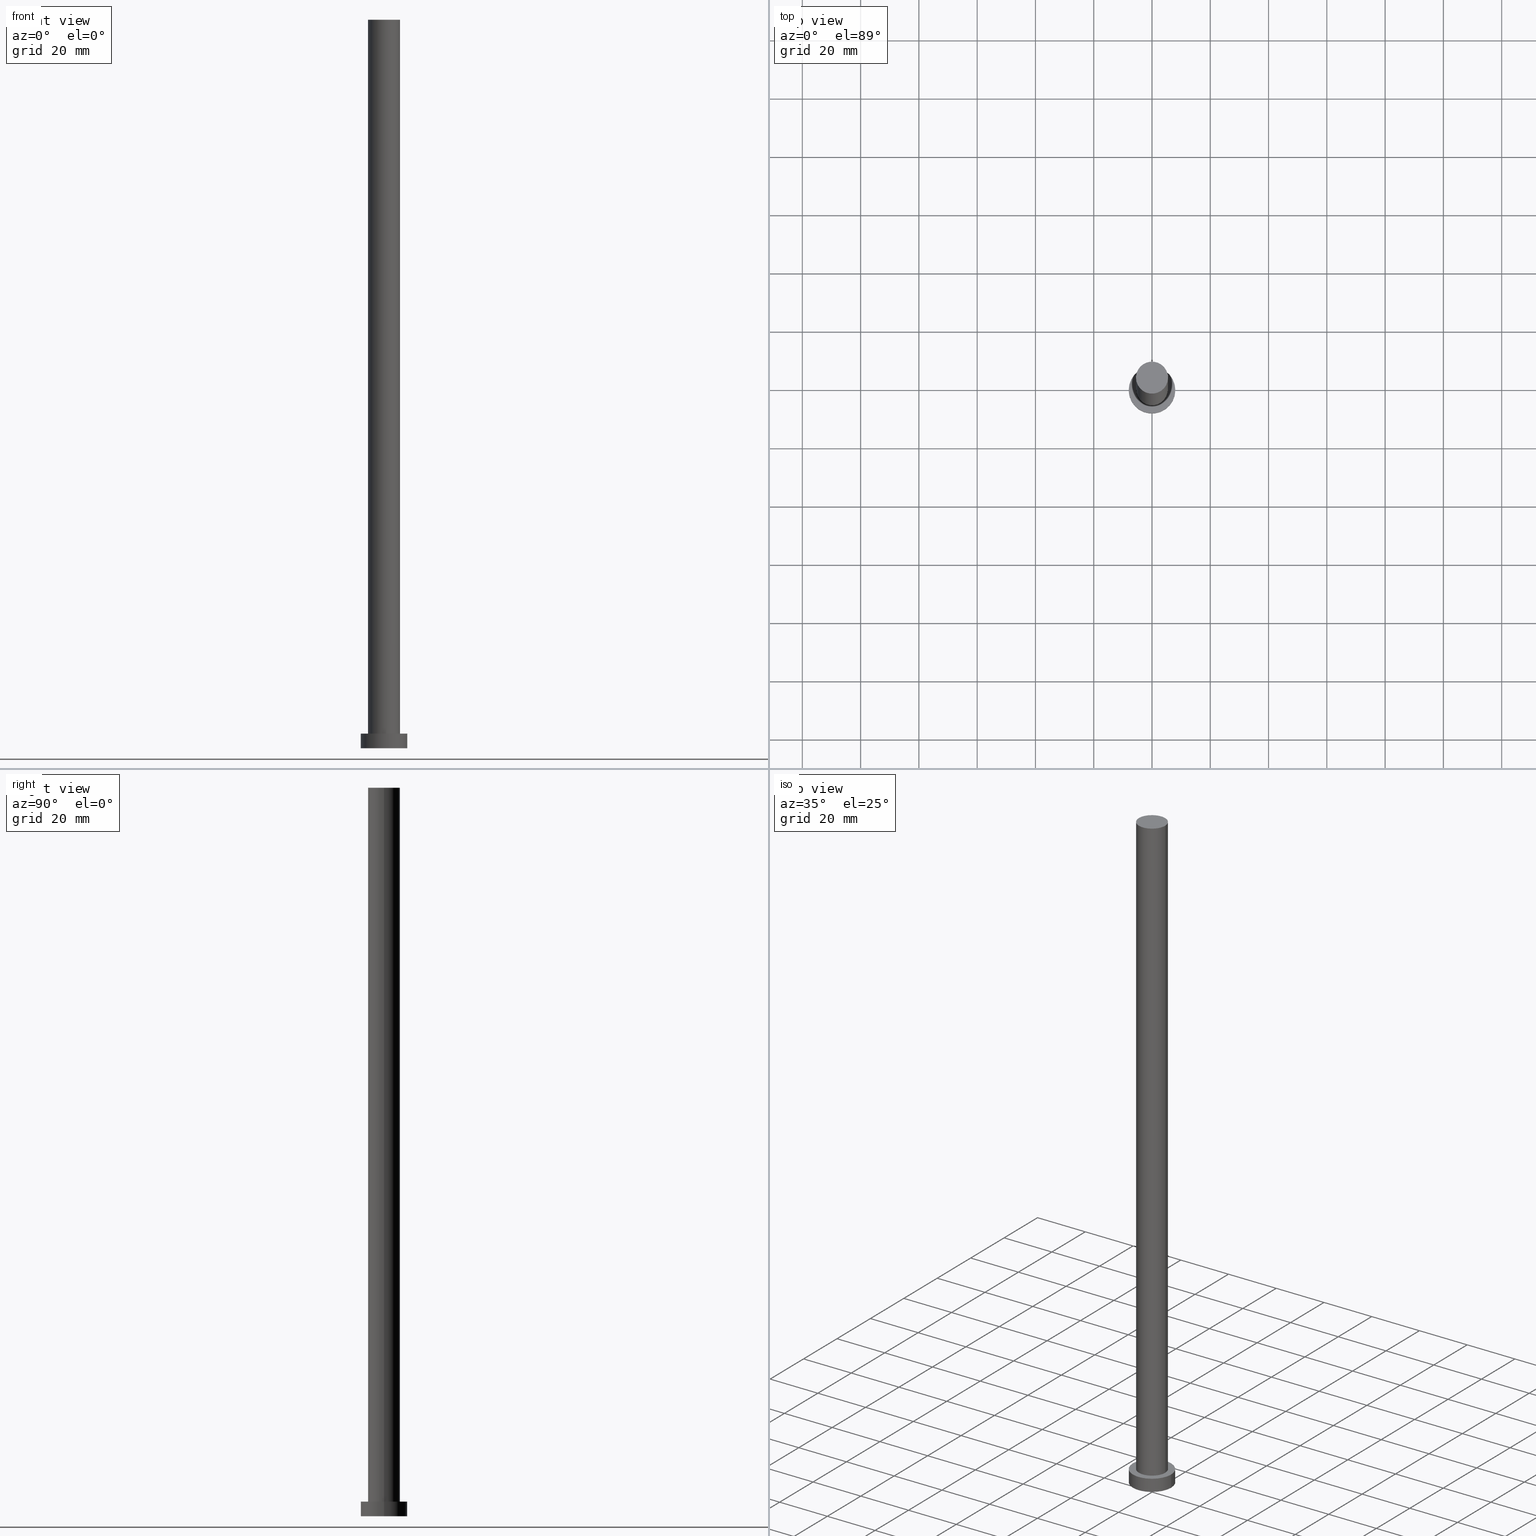
[diagram: canonical four-view strip — front | top / right | iso, engineering-drawing reading convention]
A machine part, canonical four-view strip (front | top / right | iso — engineering-drawing reading convention). The complete STEP part file that produces these views, byte-faithful:
ISO-10303-21;
HEADER;
FILE_DESCRIPTION (( 'STEP AP203' ),
    '1' );
FILE_NAME ('cf1f.STEP',
    '2023-02-13T12:29:04',
    ( '' ),
    ( '' ),
    'SwSTEP 2.0',
    'SolidWorks 2019',
    '' );
FILE_SCHEMA (( 'CONFIG_CONTROL_DESIGN' ));
ENDSEC;

DATA;
#1 = CC_DESIGN_SECURITY_CLASSIFICATION ( #71, ( #59 ) ) ;
#2 = AXIS2_PLACEMENT_3D ( 'NONE', #190, #151, #82 ) ;
#3 = ORIENTED_EDGE ( 'NONE', *, *, #97, .T. ) ;
#4 = CC_DESIGN_DATE_AND_TIME_ASSIGNMENT ( #74, #120, ( #160 ) ) ;
#5 = ORIENTED_EDGE ( 'NONE', *, *, #213, .T. ) ;
#6 = EDGE_LOOP ( 'NONE', ( #103, #169, #3, #191 ) ) ;
#7 = AXIS2_PLACEMENT_3D ( 'NONE', #69, #179, #136 ) ;
#8 = DIRECTION ( 'NONE',  ( 1.000000000000000000, 0.000000000000000000, -0.000000000000000000 ) ) ;
#9 = AXIS2_PLACEMENT_3D ( 'NONE', #80, #202, #172 ) ;
#10 = CARTESIAN_POINT ( 'NONE',  ( -8.000000000000000000, 0.000000000000000000, 0.000000000000000000 ) ) ;
#11 = ADVANCED_FACE ( 'NONE', ( #228 ), #148, .T. ) ;
#12 = LINE ( 'NONE', #222, #20 ) ;
#13 = CARTESIAN_POINT ( 'NONE',  ( 0.000000000000000000, 0.000000000000000000, 250.0000000000000000 ) ) ;
#14 = FACE_OUTER_BOUND ( 'NONE', #27, .T. ) ;
#15 = PERSON_AND_ORGANIZATION_ROLE ( 'classification_officer' ) ;
#16 = CARTESIAN_POINT ( 'NONE',  ( -5.500000000000000000, 0.000000000000000000, 250.0000000000000000 ) ) ;
#17 = AXIS2_PLACEMENT_3D ( 'NONE', #217, #35, #65 ) ;
#18 = DIRECTION ( 'NONE',  ( 0.000000000000000000, 0.000000000000000000, 1.000000000000000000 ) ) ;
#19 = APPROVAL_ROLE ( '' ) ;
#20 = VECTOR ( 'NONE', #81, 1000.000000000000000 ) ;
#21 = CYLINDRICAL_SURFACE ( 'NONE', #122, 8.000000000000000000 ) ;
#22 = APPROVAL_STATUS ( 'not_yet_approved' ) ;
#23 = EDGE_CURVE ( 'NONE', #167, #24, #124, .T. ) ;
#24 = VERTEX_POINT ( 'NONE', #10 ) ;
#25 = FACE_BOUND ( 'NONE', #147, .T. ) ;
#26 = PERSON_AND_ORGANIZATION ( #78, #38 ) ;
#27 = EDGE_LOOP ( 'NONE', ( #86, #145 ) ) ;
#28 = CARTESIAN_POINT ( 'NONE',  ( 8.000000000000000000, 9.797174393178825657E-16, 0.000000000000000000 ) ) ;
#29 = VERTEX_POINT ( 'NONE', #126 ) ;
#30 = APPROVAL ( #22, 'NEUR�EN�' ) ;
#31 = CARTESIAN_POINT ( 'NONE',  ( 0.000000000000000000, 0.000000000000000000, 250.0000000000000000 ) ) ;
#32 = APPROVAL_STATUS ( 'not_yet_approved' ) ;
#33 = PERSON_AND_ORGANIZATION_ROLE ( 'creator' ) ;
#34 = CARTESIAN_POINT ( 'NONE',  ( 8.000000000000000000, 9.797174393178825657E-16, 5.000000000000000000 ) ) ;
#35 = DIRECTION ( 'NONE',  ( 0.000000000000000000, 0.000000000000000000, 1.000000000000000000 ) ) ;
#36 = DATE_AND_TIME ( #252, #189 ) ;
#37 = EDGE_CURVE ( 'NONE', #209, #152, #121, .T. ) ;
#38 = ORGANIZATION ( 'NEUR�EN�', 'NEUR�EN�', '' ) ;
#39 = ORIENTED_EDGE ( 'NONE', *, *, #108, .T. ) ;
#40 = PRODUCT_DEFINITION_SHAPE ( 'NONE', 'NONE',  #160 ) ;
#41 = ORIENTED_EDGE ( 'NONE', *, *, #90, .F. ) ;
#42 = APPROVAL_PERSON_ORGANIZATION ( #110, #56, #215 ) ;
#43 = AXIS2_PLACEMENT_3D ( 'NONE', #242, #105, #243 ) ;
#44 = LINE ( 'NONE', #208, #128 ) ;
#45 = UNCERTAINTY_MEASURE_WITH_UNIT (LENGTH_MEASURE( 1.000000000000000082E-05 ), #239, 'distance_accuracy_value', 'NONE');
#46 = VERTEX_POINT ( 'NONE', #28 ) ;
#47 = DIRECTION ( 'NONE',  ( -0.000000000000000000, -0.000000000000000000, -1.000000000000000000 ) ) ;
#48 = PERSON_AND_ORGANIZATION ( #78, #38 ) ;
#49 = CARTESIAN_POINT ( 'NONE',  ( -8.000000000000000000, 0.000000000000000000, 5.000000000000000000 ) ) ;
#50 = CALENDAR_DATE ( 2023, 13, 2 ) ;
#51 = EDGE_CURVE ( 'NONE', #24, #46, #238, .T. ) ;
#52 = CARTESIAN_POINT ( 'NONE',  ( 5.500000000000000000, 6.735557395310442023E-16, 250.0000000000000000 ) ) ;
#53 = COORDINATED_UNIVERSAL_TIME_OFFSET ( 1, 0, .AHEAD. ) ;
#54 = PLANE ( 'NONE',  #17 ) ;
#55 = COORDINATED_UNIVERSAL_TIME_OFFSET ( 1, 0, .AHEAD. ) ;
#56 = APPROVAL ( #212, 'NEUR�EN�' ) ;
#57 = APPROVAL_PERSON_ORGANIZATION ( #137, #248, #159 ) ;
#58 = EDGE_CURVE ( 'NONE', #185, #46, #44, .T. ) ;
#59 = PRODUCT_DEFINITION_FORMATION_WITH_SPECIFIED_SOURCE ( 'LIBOVOLN�', '', #200, .NOT_KNOWN. ) ;
#60 = CC_DESIGN_APPROVAL ( #30, ( #71 ) ) ;
#61 = PRODUCT_RELATED_PRODUCT_CATEGORY ( 'detail', '', ( #200 ) ) ;
#62 = AXIS2_PLACEMENT_3D ( 'NONE', #247, #73, #70 ) ;
#63 = PLANE ( 'NONE',  #196 ) ;
#64 = CARTESIAN_POINT ( 'NONE',  ( 0.000000000000000000, 0.000000000000000000, 5.000000000000000000 ) ) ;
#65 = DIRECTION ( 'NONE',  ( 1.000000000000000000, 0.000000000000000000, -0.000000000000000000 ) ) ;
#66 = APPROVAL_DATE_TIME ( #118, #248 ) ;
#67 = AXIS2_PLACEMENT_3D ( 'NONE', #138, #195, #211 ) ;
#68 = PERSON_AND_ORGANIZATION ( #78, #38 ) ;
#69 = CARTESIAN_POINT ( 'NONE',  ( 0.000000000000000000, 0.000000000000000000, 0.000000000000000000 ) ) ;
#70 = DIRECTION ( 'NONE',  ( 1.000000000000000000, 0.000000000000000000, 0.000000000000000000 ) ) ;
#71 = SECURITY_CLASSIFICATION ( '', '', #233 ) ;
#72 = EDGE_CURVE ( 'NONE', #152, #99, #12, .T. ) ;
#73 = DIRECTION ( 'NONE',  ( 0.000000000000000000, 0.000000000000000000, 1.000000000000000000 ) ) ;
#74 = DATE_AND_TIME ( #96, #140 ) ;
#75 = AXIS2_PLACEMENT_3D ( 'NONE', #216, #89, #133 ) ;
#76 = ADVANCED_FACE ( 'NONE', ( #25, #244 ), #63, .T. ) ;
#77 = DIRECTION ( 'NONE',  ( -1.000000000000000000, 0.000000000000000000, 0.000000000000000000 ) ) ;
#78 = PERSON ( 'NEUR�EN�', 'NEUR�EN�', 'NEUR�EN�', ('NEUR�EN�'), ('NEUR�EN�'), ('NEUR�EN�') ) ;
#79 = ORIENTED_EDGE ( 'NONE', *, *, #37, .F. ) ;
#80 = CARTESIAN_POINT ( 'NONE',  ( 0.000000000000000000, 0.000000000000000000, 250.0000000000000000 ) ) ;
#81 = DIRECTION ( 'NONE',  ( -0.000000000000000000, -0.000000000000000000, -1.000000000000000000 ) ) ;
#82 = DIRECTION ( 'NONE',  ( 1.000000000000000000, 0.000000000000000000, 0.000000000000000000 ) ) ;
#83 =( NAMED_UNIT ( * ) PLANE_ANGLE_UNIT ( ) SI_UNIT ( $, .RADIAN. ) );
#84 = DIRECTION ( 'NONE',  ( 0.000000000000000000, 0.000000000000000000, 1.000000000000000000 ) ) ;
#85 = ORIENTED_EDGE ( 'NONE', *, *, #37, .T. ) ;
#86 = ORIENTED_EDGE ( 'NONE', *, *, #51, .F. ) ;
#87 = CARTESIAN_POINT ( 'NONE',  ( -5.500000000000000000, 0.000000000000000000, 250.0000000000000000 ) ) ;
#88 = DATE_AND_TIME ( #193, #210 ) ;
#89 = DIRECTION ( 'NONE',  ( 0.000000000000000000, 0.000000000000000000, 1.000000000000000000 ) ) ;
#90 = EDGE_CURVE ( 'NONE', #185, #167, #192, .T. ) ;
#91 = CC_DESIGN_APPROVAL ( #248, ( #59 ) ) ;
#92 = AXIS2_PLACEMENT_3D ( 'NONE', #13, #106, #77 ) ;
#93 = CARTESIAN_POINT ( 'NONE',  ( 0.000000000000000000, 0.000000000000000000, 5.000000000000000000 ) ) ;
#94 = CC_DESIGN_PERSON_AND_ORGANIZATION_ASSIGNMENT ( #198, #164, ( #160 ) ) ;
#95 = CARTESIAN_POINT ( 'NONE',  ( 0.000000000000000000, 0.000000000000000000, 250.0000000000000000 ) ) ;
#96 = CALENDAR_DATE ( 2023, 13, 2 ) ;
#97 = EDGE_CURVE ( 'NONE', #99, #29, #224, .T. ) ;
#98 = EDGE_LOOP ( 'NONE', ( #131, #79, #101, #39 ) ) ;
#99 = VERTEX_POINT ( 'NONE', #116 ) ;
#100 = CIRCLE ( 'NONE', #75, 8.000000000000000000 ) ;
#101 = ORIENTED_EDGE ( 'NONE', *, *, #129, .T. ) ;
#102 = CC_DESIGN_PERSON_AND_ORGANIZATION_ASSIGNMENT ( #26, #207, ( #200 ) ) ;
#103 = ORIENTED_EDGE ( 'NONE', *, *, #188, .F. ) ;
#104 = ORIENTED_EDGE ( 'NONE', *, *, #119, .F. ) ;
#105 = DIRECTION ( 'NONE',  ( 0.000000000000000000, 0.000000000000000000, 1.000000000000000000 ) ) ;
#106 = DIRECTION ( 'NONE',  ( -0.000000000000000000, -0.000000000000000000, -1.000000000000000000 ) ) ;
#107 = ADVANCED_BREP_SHAPE_REPRESENTATION ( 'cf1f', ( #241, #2 ), #162 ) ;
#108 = EDGE_CURVE ( 'NONE', #29, #99, #117, .T. ) ;
#109 = LOCAL_TIME ( 13, 29, 4.000000000000000000, #55 ) ;
#110 = PERSON_AND_ORGANIZATION ( #78, #38 ) ;
#111 = VECTOR ( 'NONE', #134, 1000.000000000000000 ) ;
#112 = APPLICATION_PROTOCOL_DEFINITION ( 'international standard', 'config_control_design', 1994, #181 ) ;
#113 = LINE ( 'NONE', #16, #111 ) ;
#114 = DATE_AND_TIME ( #254, #109 ) ;
#115 = SHAPE_DEFINITION_REPRESENTATION ( #40, #107 ) ;
#116 = CARTESIAN_POINT ( 'NONE',  ( 5.500000000000000000, 6.735557395310442023E-16, 5.000000000000000000 ) ) ;
#117 = CIRCLE ( 'NONE', #62, 5.500000000000000000 ) ;
#118 = DATE_AND_TIME ( #50, #206 ) ;
#119 = EDGE_CURVE ( 'NONE', #167, #185, #100, .T. ) ;
#120 = DATE_TIME_ROLE ( 'creation_date' ) ;
#121 = CIRCLE ( 'NONE', #9, 5.500000000000000000 ) ;
#122 = AXIS2_PLACEMENT_3D ( 'NONE', #93, #177, #174 ) ;
#123 = CC_DESIGN_PERSON_AND_ORGANIZATION_ASSIGNMENT ( #68, #15, ( #71 ) ) ;
#124 = LINE ( 'NONE', #168, #156 ) ;
#125 = ORIENTED_EDGE ( 'NONE', *, *, #51, .T. ) ;
#126 = CARTESIAN_POINT ( 'NONE',  ( -5.500000000000000000, 0.000000000000000000, 5.000000000000000000 ) ) ;
#127 = ORIENTED_EDGE ( 'NONE', *, *, #108, .F. ) ;
#128 = VECTOR ( 'NONE', #186, 1000.000000000000000 ) ;
#129 = EDGE_CURVE ( 'NONE', #209, #29, #113, .T. ) ;
#130 = DIRECTION ( 'NONE',  ( 0.000000000000000000, 0.000000000000000000, 1.000000000000000000 ) ) ;
#131 = ORIENTED_EDGE ( 'NONE', *, *, #72, .F. ) ;
#132 = DIRECTION ( 'NONE',  ( -1.000000000000000000, 0.000000000000000000, 0.000000000000000000 ) ) ;
#133 = DIRECTION ( 'NONE',  ( 1.000000000000000000, 0.000000000000000000, 0.000000000000000000 ) ) ;
#134 = DIRECTION ( 'NONE',  ( -0.000000000000000000, -0.000000000000000000, -1.000000000000000000 ) ) ;
#135 = PERSON_AND_ORGANIZATION_ROLE ( 'design_supplier' ) ;
#136 = DIRECTION ( 'NONE',  ( 1.000000000000000000, 0.000000000000000000, 0.000000000000000000 ) ) ;
#137 = PERSON_AND_ORGANIZATION ( #78, #38 ) ;
#138 = CARTESIAN_POINT ( 'NONE',  ( 0.000000000000000000, 0.000000000000000000, 0.000000000000000000 ) ) ;
#139 = PERSON_AND_ORGANIZATION ( #78, #38 ) ;
#140 = LOCAL_TIME ( 13, 29, 4.000000000000000000, #219 ) ;
#141 = ADVANCED_FACE ( 'NONE', ( #163 ), #251, .T. ) ;
#142 = ORIENTED_EDGE ( 'NONE', *, *, #119, .T. ) ;
#143 = AXIS2_PLACEMENT_3D ( 'NONE', #31, #18, #158 ) ;
#144 = ORIENTED_EDGE ( 'NONE', *, *, #97, .F. ) ;
#145 = ORIENTED_EDGE ( 'NONE', *, *, #213, .F. ) ;
#146 = ADVANCED_FACE ( 'NONE', ( #161 ), #157, .T. ) ;
#147 = EDGE_LOOP ( 'NONE', ( #127, #144 ) ) ;
#148 = CYLINDRICAL_SURFACE ( 'NONE', #92, 5.500000000000000000 ) ;
#149 = CLOSED_SHELL ( 'NONE', ( #141, #234, #146, #76, #176, #11, #240 ) ) ;
#150 = CARTESIAN_POINT ( 'NONE',  ( 0.000000000000000000, 0.000000000000000000, 5.000000000000000000 ) ) ;
#151 = DIRECTION ( 'NONE',  ( 0.000000000000000000, 0.000000000000000000, 1.000000000000000000 ) ) ;
#152 = VERTEX_POINT ( 'NONE', #52 ) ;
#153 = DIRECTION ( 'NONE',  ( 0.000000000000000000, 0.000000000000000000, 1.000000000000000000 ) ) ;
#154 = ORIENTED_EDGE ( 'NONE', *, *, #90, .T. ) ;
#155 = PERSON_AND_ORGANIZATION ( #78, #38 ) ;
#156 = VECTOR ( 'NONE', #184, 1000.000000000000000 ) ;
#157 = CYLINDRICAL_SURFACE ( 'NONE', #220, 8.000000000000000000 ) ;
#158 = DIRECTION ( 'NONE',  ( 1.000000000000000000, 0.000000000000000000, 0.000000000000000000 ) ) ;
#159 = APPROVAL_ROLE ( '' ) ;
#160 = PRODUCT_DEFINITION ( 'NEZN�M�', '', #59, #229 ) ;
#161 = FACE_OUTER_BOUND ( 'NONE', #173, .T. ) ;
#162 =( GEOMETRIC_REPRESENTATION_CONTEXT ( 3 ) GLOBAL_UNCERTAINTY_ASSIGNED_CONTEXT ( ( #45 ) ) GLOBAL_UNIT_ASSIGNED_CONTEXT ( ( #239, #83, #205 ) ) REPRESENTATION_CONTEXT ( 'NONE', 'WORKASPACE' ) );
#163 = FACE_OUTER_BOUND ( 'NONE', #6, .T. ) ;
#164 = PERSON_AND_ORGANIZATION_ROLE ( 'creator' ) ;
#165 = CIRCLE ( 'NONE', #7, 8.000000000000000000 ) ;
#166 = EDGE_LOOP ( 'NONE', ( #85, #171 ) ) ;
#167 = VERTEX_POINT ( 'NONE', #49 ) ;
#168 = CARTESIAN_POINT ( 'NONE',  ( -8.000000000000000000, 0.000000000000000000, 5.000000000000000000 ) ) ;
#169 = ORIENTED_EDGE ( 'NONE', *, *, #72, .T. ) ;
#170 = ORIENTED_EDGE ( 'NONE', *, *, #58, .F. ) ;
#171 = ORIENTED_EDGE ( 'NONE', *, *, #188, .T. ) ;
#172 = DIRECTION ( 'NONE',  ( 1.000000000000000000, 0.000000000000000000, 0.000000000000000000 ) ) ;
#173 = EDGE_LOOP ( 'NONE', ( #170, #104, #204, #125 ) ) ;
#174 = DIRECTION ( 'NONE',  ( -1.000000000000000000, 0.000000000000000000, 0.000000000000000000 ) ) ;
#175 = DIRECTION ( 'NONE',  ( -1.000000000000000000, 0.000000000000000000, 0.000000000000000000 ) ) ;
#176 = ADVANCED_FACE ( 'NONE', ( #14 ), #214, .F. ) ;
#177 = DIRECTION ( 'NONE',  ( -0.000000000000000000, -0.000000000000000000, -1.000000000000000000 ) ) ;
#178 = COORDINATED_UNIVERSAL_TIME_OFFSET ( 1, 0, .AHEAD. ) ;
#179 = DIRECTION ( 'NONE',  ( 0.000000000000000000, 0.000000000000000000, 1.000000000000000000 ) ) ;
#180 = EDGE_LOOP ( 'NONE', ( #142, #154 ) ) ;
#181 = APPLICATION_CONTEXT ( 'configuration controlled 3d designs of mechanical parts and assemblies' ) ;
#182 = EDGE_LOOP ( 'NONE', ( #41, #187, #5, #223 ) ) ;
#183 = CIRCLE ( 'NONE', #143, 5.500000000000000000 ) ;
#184 = DIRECTION ( 'NONE',  ( -0.000000000000000000, -0.000000000000000000, -1.000000000000000000 ) ) ;
#185 = VERTEX_POINT ( 'NONE', #34 ) ;
#186 = DIRECTION ( 'NONE',  ( -0.000000000000000000, -0.000000000000000000, -1.000000000000000000 ) ) ;
#187 = ORIENTED_EDGE ( 'NONE', *, *, #58, .T. ) ;
#188 = EDGE_CURVE ( 'NONE', #152, #209, #183, .T. ) ;
#189 = LOCAL_TIME ( 13, 29, 4.000000000000000000, #178 ) ;
#190 = CARTESIAN_POINT ( 'NONE',  ( 0.000000000000000000, 0.000000000000000000, 0.000000000000000000 ) ) ;
#191 = ORIENTED_EDGE ( 'NONE', *, *, #129, .F. ) ;
#192 = CIRCLE ( 'NONE', #201, 8.000000000000000000 ) ;
#193 = CALENDAR_DATE ( 2023, 13, 2 ) ;
#194 = APPROVAL_PERSON_ORGANIZATION ( #48, #30, #19 ) ;
#195 = DIRECTION ( 'NONE',  ( 0.000000000000000000, 0.000000000000000000, 1.000000000000000000 ) ) ;
#196 = AXIS2_PLACEMENT_3D ( 'NONE', #150, #84, #8 ) ;
#197 = FACE_OUTER_BOUND ( 'NONE', #182, .T. ) ;
#198 = PERSON_AND_ORGANIZATION ( #78, #38 ) ;
#199 = APPLICATION_CONTEXT ( 'configuration controlled 3d designs of mechanical parts and assemblies' ) ;
#200 = PRODUCT ( 'cf1f', 'cf1f', '', ( #245 ) ) ;
#201 = AXIS2_PLACEMENT_3D ( 'NONE', #226, #130, #246 ) ;
#202 = DIRECTION ( 'NONE',  ( 0.000000000000000000, 0.000000000000000000, 1.000000000000000000 ) ) ;
#203 = CC_DESIGN_DATE_AND_TIME_ASSIGNMENT ( #88, #230, ( #71 ) ) ;
#204 = ORIENTED_EDGE ( 'NONE', *, *, #23, .T. ) ;
#205 =( NAMED_UNIT ( * ) SI_UNIT ( $, .STERADIAN. ) SOLID_ANGLE_UNIT ( ) );
#206 = LOCAL_TIME ( 13, 29, 4.000000000000000000, #237 ) ;
#207 = PERSON_AND_ORGANIZATION_ROLE ( 'design_owner' ) ;
#208 = CARTESIAN_POINT ( 'NONE',  ( 8.000000000000000000, 9.797174393178825657E-16, 5.000000000000000000 ) ) ;
#209 = VERTEX_POINT ( 'NONE', #87 ) ;
#210 = LOCAL_TIME ( 13, 29, 4.000000000000000000, #53 ) ;
#211 = DIRECTION ( 'NONE',  ( 1.000000000000000000, 0.000000000000000000, -0.000000000000000000 ) ) ;
#212 = APPROVAL_STATUS ( 'not_yet_approved' ) ;
#213 = EDGE_CURVE ( 'NONE', #46, #24, #165, .T. ) ;
#214 = PLANE ( 'NONE',  #67 ) ;
#215 = APPROVAL_ROLE ( '' ) ;
#216 = CARTESIAN_POINT ( 'NONE',  ( 0.000000000000000000, 0.000000000000000000, 5.000000000000000000 ) ) ;
#217 = CARTESIAN_POINT ( 'NONE',  ( 0.000000000000000000, 0.000000000000000000, 250.0000000000000000 ) ) ;
#218 = CC_DESIGN_PERSON_AND_ORGANIZATION_ASSIGNMENT ( #155, #33, ( #59 ) ) ;
#219 = COORDINATED_UNIVERSAL_TIME_OFFSET ( 1, 0, .AHEAD. ) ;
#220 = AXIS2_PLACEMENT_3D ( 'NONE', #231, #253, #175 ) ;
#221 = AXIS2_PLACEMENT_3D ( 'NONE', #95, #47, #132 ) ;
#222 = CARTESIAN_POINT ( 'NONE',  ( 5.500000000000000000, 6.735557395310442023E-16, 250.0000000000000000 ) ) ;
#223 = ORIENTED_EDGE ( 'NONE', *, *, #23, .F. ) ;
#224 = CIRCLE ( 'NONE', #236, 5.500000000000000000 ) ;
#225 = CC_DESIGN_PERSON_AND_ORGANIZATION_ASSIGNMENT ( #139, #135, ( #59 ) ) ;
#226 = CARTESIAN_POINT ( 'NONE',  ( 0.000000000000000000, 0.000000000000000000, 5.000000000000000000 ) ) ;
#227 = APPLICATION_PROTOCOL_DEFINITION ( 'international standard', 'config_control_design', 1994, #199 ) ;
#228 = FACE_OUTER_BOUND ( 'NONE', #98, .T. ) ;
#229 = DESIGN_CONTEXT ( 'detailed design', #199, 'design' ) ;
#230 = DATE_TIME_ROLE ( 'classification_date' ) ;
#231 = CARTESIAN_POINT ( 'NONE',  ( 0.000000000000000000, 0.000000000000000000, 5.000000000000000000 ) ) ;
#232 = DIRECTION ( 'NONE',  ( 1.000000000000000000, 0.000000000000000000, 0.000000000000000000 ) ) ;
#233 = SECURITY_CLASSIFICATION_LEVEL ( 'unclassified' ) ;
#234 = ADVANCED_FACE ( 'NONE', ( #197 ), #21, .T. ) ;
#235 = FACE_OUTER_BOUND ( 'NONE', #166, .T. ) ;
#236 = AXIS2_PLACEMENT_3D ( 'NONE', #64, #153, #232 ) ;
#237 = COORDINATED_UNIVERSAL_TIME_OFFSET ( 1, 0, .AHEAD. ) ;
#238 = CIRCLE ( 'NONE', #43, 8.000000000000000000 ) ;
#239 =( LENGTH_UNIT ( ) NAMED_UNIT ( * ) SI_UNIT ( .MILLI., .METRE. ) );
#240 = ADVANCED_FACE ( 'NONE', ( #235 ), #54, .T. ) ;
#241 = MANIFOLD_SOLID_BREP ( 'P�idat vysunut�m3', #149 ) ;
#242 = CARTESIAN_POINT ( 'NONE',  ( 0.000000000000000000, 0.000000000000000000, 0.000000000000000000 ) ) ;
#243 = DIRECTION ( 'NONE',  ( 1.000000000000000000, 0.000000000000000000, 0.000000000000000000 ) ) ;
#244 = FACE_OUTER_BOUND ( 'NONE', #180, .T. ) ;
#245 = MECHANICAL_CONTEXT ( 'NONE', #181, 'mechanical' ) ;
#246 = DIRECTION ( 'NONE',  ( 1.000000000000000000, 0.000000000000000000, 0.000000000000000000 ) ) ;
#247 = CARTESIAN_POINT ( 'NONE',  ( 0.000000000000000000, 0.000000000000000000, 5.000000000000000000 ) ) ;
#248 = APPROVAL ( #32, 'NEUR�EN�' ) ;
#249 = APPROVAL_DATE_TIME ( #36, #56 ) ;
#250 = CC_DESIGN_APPROVAL ( #56, ( #160 ) ) ;
#251 = CYLINDRICAL_SURFACE ( 'NONE', #221, 5.500000000000000000 ) ;
#252 = CALENDAR_DATE ( 2023, 13, 2 ) ;
#253 = DIRECTION ( 'NONE',  ( -0.000000000000000000, -0.000000000000000000, -1.000000000000000000 ) ) ;
#254 = CALENDAR_DATE ( 2023, 13, 2 ) ;
#255 = APPROVAL_DATE_TIME ( #114, #30 ) ;
ENDSEC;
END-ISO-10303-21;
